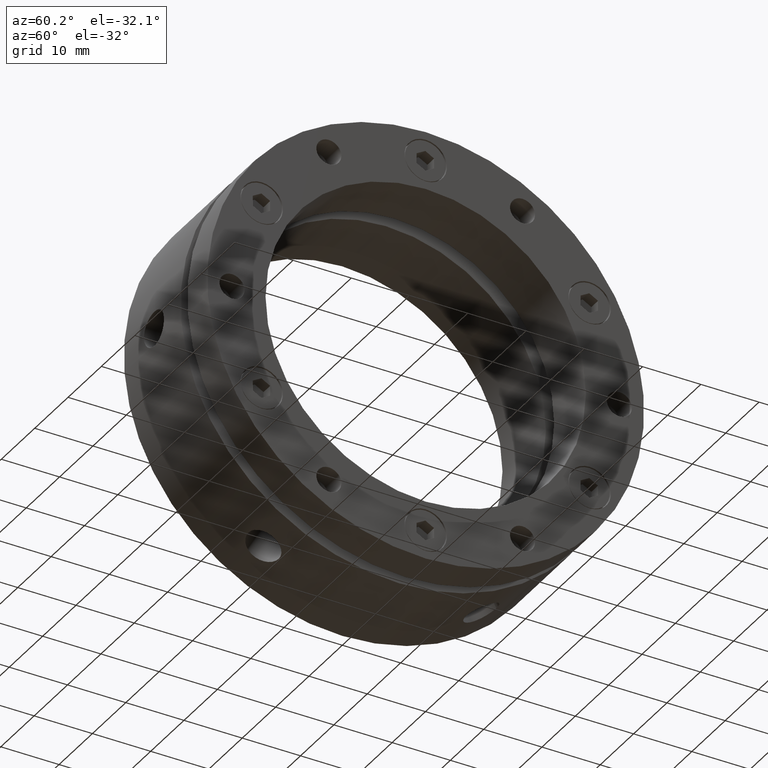
[diagram: clean part render]
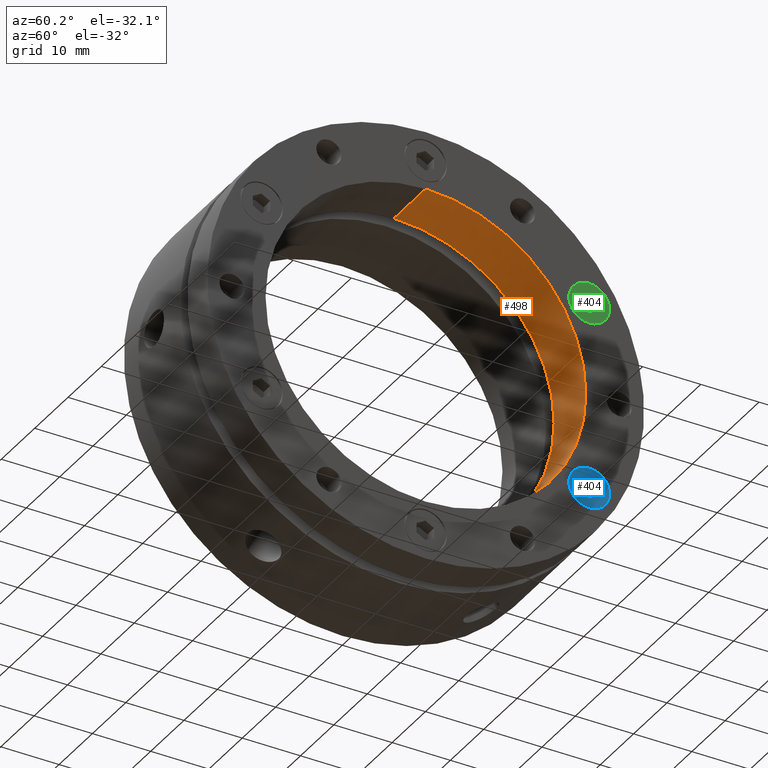
[diagram: same view with three faces highlighted in distinct colors, each labeled with its STEP entity id]
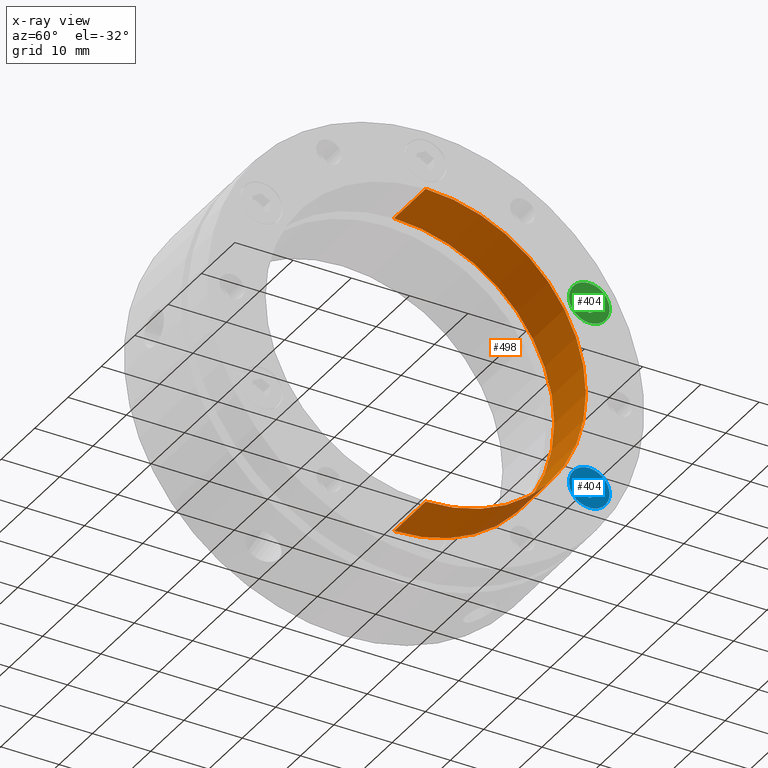
[diagram: x-ray of the same camera — body ghosted, the three highlighted faces saturated]
A machine part, auxiliary view with three faces highlighted in distinct colors.
The next image is the same camera in x-ray (body ghosted, the three faces saturated) — at least one of them is partly hidden behind the body in this view.
Their STEP definitions:

[orange] entity #498 — the highlighted cylindrical surface (partial cylindrical patch) has radius 27.5 mm, axis along (1, 0, 0).
#498 = ADVANCED_FACE ( 'NONE', ( #3515 ), #3524, .F. ) ;
#813 = ORIENTED_EDGE ( 'NONE', *, *, #3856, .F. ) ;
#814 = ORIENTED_EDGE ( 'NONE', *, *, #3980, .T. ) ;
#815 = ORIENTED_EDGE ( 'NONE', *, *, #3869, .T. ) ;
#816 = ORIENTED_EDGE ( 'NONE', *, *, #3982, .F. ) ;
#954 = VERTEX_POINT ( 'NONE', #1866 ) ;
#955 = VERTEX_POINT ( 'NONE', #1867 ) ;
#959 = VERTEX_POINT ( 'NONE', #1871 ) ;
#960 = VERTEX_POINT ( 'NONE', #1872 ) ;
#1208 = AXIS2_PLACEMENT_3D ( 'NONE', #2218, #2220, #2222 ) ;
#1221 = AXIS2_PLACEMENT_3D ( 'NONE', #2301, #2303, #2304 ) ;
#1866 = CARTESIAN_POINT ( 'NONE',  ( 24.99999999999999300, 3.367778697655221300E-015, 27.50000000000000000 ) ) ;
#1867 = CARTESIAN_POINT ( 'NONE',  ( 24.99999999999999300, 0.0000000000000000000, -27.50000000000000000 ) ) ;
#1871 = CARTESIAN_POINT ( 'NONE',  ( 15.50000000000000500, 3.367778697655221300E-015, 27.50000000000000000 ) ) ;
#1872 = CARTESIAN_POINT ( 'NONE',  ( 15.50000000000000500, 0.0000000000000000000, -27.50000000000000000 ) ) ;
#2218 = CARTESIAN_POINT ( 'NONE',  ( 24.99999999999999300, 0.0000000000000000000, 0.0000000000000000000 ) ) ;
#2220 = DIRECTION ( 'NONE',  ( -1.000000000000000000, -0.0000000000000000000, -0.0000000000000000000 ) ) ;
#2222 = DIRECTION ( 'NONE',  ( 0.0000000000000000000, 0.0000000000000000000, -1.000000000000000000 ) ) ;
#2301 = CARTESIAN_POINT ( 'NONE',  ( 15.50000000000000500, 0.0000000000000000000, 0.0000000000000000000 ) ) ;
#2303 = DIRECTION ( 'NONE',  ( -1.000000000000000000, -0.0000000000000000000, -0.0000000000000000000 ) ) ;
#2304 = DIRECTION ( 'NONE',  ( 0.0000000000000000000, 0.0000000000000000000, -1.000000000000000000 ) ) ;
#2373 = DIRECTION ( 'NONE',  ( 1.000000000000000000, 0.0000000000000000000, 0.0000000000000000000 ) ) ;
#2382 = CARTESIAN_POINT ( 'NONE',  ( 12.49999999999999300, 0.0000000000000000000, -27.50000000000000000 ) ) ;
#2385 = CARTESIAN_POINT ( 'NONE',  ( 12.49999999999999300, 3.367778697655221300E-015, 27.50000000000000000 ) ) ;
#2386 = DIRECTION ( 'NONE',  ( 1.000000000000000000, 0.0000000000000000000, 0.0000000000000000000 ) ) ;
#2620 = CIRCLE ( 'NONE', #1208, 27.50000000000000000 ) ;
#2637 = CIRCLE ( 'NONE', #1221, 27.50000000000000000 ) ;
#2652 = LINE ( 'NONE', #2382, #2654 ) ;
#2654 = VECTOR ( 'NONE', #2373, 1000.000000000000000 ) ;
#2655 = LINE ( 'NONE', #2385, #2657 ) ;
#2657 = VECTOR ( 'NONE', #2386, 1000.000000000000000 ) ;
#3212 = AXIS2_PLACEMENT_3D ( 'NONE', #4454, #4452, #4450 ) ;
#3515 = FACE_OUTER_BOUND ( 'NONE', #3888, .T. ) ;
#3524 = CYLINDRICAL_SURFACE ( 'NONE', #3212, 27.50000000000000000 ) ;
#3856 = EDGE_CURVE ( 'NONE', #954, #955, #2620, .T. ) ;
#3869 = EDGE_CURVE ( 'NONE', #959, #960, #2637, .T. ) ;
#3888 = EDGE_LOOP ( 'NONE', ( #816, #815, #814, #813 ) ) ;
#3980 = EDGE_CURVE ( 'NONE', #960, #955, #2652, .T. ) ;
#3982 = EDGE_CURVE ( 'NONE', #959, #954, #2655, .T. ) ;
#4450 = DIRECTION ( 'NONE',  ( 0.0000000000000000000, 0.0000000000000000000, -1.000000000000000000 ) ) ;
#4452 = DIRECTION ( 'NONE',  ( 1.000000000000000000, 0.0000000000000000000, 0.0000000000000000000 ) ) ;
#4454 = CARTESIAN_POINT ( 'NONE',  ( 12.49999999999999300, 0.0000000000000000000, 0.0000000000000000000 ) ) ;

[blue] entity #404 — the highlighted planar face has unit normal (1, 0, 0).
#69 = ORIENTED_EDGE ( 'NONE', *, *, #631, .F. ) ;
#135 = ORIENTED_EDGE ( 'NONE', *, *, #630, .F. ) ;
#148 = ORIENTED_EDGE ( 'NONE', *, *, #602, .T. ) ;
#153 = ORIENTED_EDGE ( 'NONE', *, *, #600, .F. ) ;
#182 = ORIENTED_EDGE ( 'NONE', *, *, #603, .F. ) ;
#189 = ORIENTED_EDGE ( 'NONE', *, *, #4701, .F. ) ;
#258 = ORIENTED_EDGE ( 'NONE', *, *, #628, .F. ) ;
#269 = ORIENTED_EDGE ( 'NONE', *, *, #629, .T. ) ;
#331 = EDGE_LOOP ( 'NONE', ( #258, #135, #69, #182, #153, #189 ) ) ;
#360 = EDGE_LOOP ( 'NONE', ( #269, #148 ) ) ;
#384 = VERTEX_POINT ( 'NONE', #4121 ) ;
#386 = VERTEX_POINT ( 'NONE', #4123 ) ;
#404 = ADVANCED_FACE ( 'NONE', ( #3301, #3304 ), #4156, .T. ) ;
#534 = AXIS2_PLACEMENT_3D ( 'NONE', #4152, #4161, #4162 ) ;
#600 = EDGE_CURVE ( 'NONE', #2254, #2246, #3617, .T. ) ;
#602 = EDGE_CURVE ( 'NONE', #386, #2266, #3621, .T. ) ;
#603 = EDGE_CURVE ( 'NONE', #2246, #2244, #3623, .T. ) ;
#628 = EDGE_CURVE ( 'NONE', #384, #2255, #3654, .T. ) ;
#629 = EDGE_CURVE ( 'NONE', #2266, #386, #3651, .T. ) ;
#630 = EDGE_CURVE ( 'NONE', #2248, #384, #3658, .T. ) ;
#631 = EDGE_CURVE ( 'NONE', #2244, #2248, #3656, .T. ) ;
#1635 = DIRECTION ( 'NONE',  ( -1.251928832280965900E-016, 0.0000000000000000000, -1.000000000000000000 ) ) ;
#1639 = CARTESIAN_POINT ( 'NONE',  ( 1.499999999999999800, 4.000000000000000000, -0.8660254037844389300 ) ) ;
#1640 = CARTESIAN_POINT ( 'NONE',  ( 1.500000000000000000, 4.000000000000000000, 0.8660254037844387100 ) ) ;
#1641 = DIRECTION ( 'NONE',  ( -0.8660254037844387100, 0.0000000000000000000, -0.4999999999999998300 ) ) ;
#1643 = CARTESIAN_POINT ( 'NONE',  ( 4.046263255784118500E-016, 4.000000000000000000, 1.732050807568877400 ) ) ;
#1644 = CARTESIAN_POINT ( 'NONE',  ( 0.0000000000000000000, 4.000000000000000000, 0.0000000000000000000 ) ) ;
#1645 = DIRECTION ( 'NONE',  ( 0.0000000000000000000, 1.000000000000000000, 0.0000000000000000000 ) ) ;
#1646 = DIRECTION ( 'NONE',  ( 0.0000000000000000000, 0.0000000000000000000, 1.000000000000000000 ) ) ;
#1648 = DIRECTION ( 'NONE',  ( 0.8660254037844386000, 0.0000000000000000000, -0.5000000000000001100 ) ) ;
#2115 = CARTESIAN_POINT ( 'NONE',  ( -1.499999999999999800, 4.000000000000000000, -0.8660254037844386000 ) ) ;
#2118 = CARTESIAN_POINT ( 'NONE',  ( 4.046263255784118500E-016, 4.000000000000000000, 1.732050807568877400 ) ) ;
#2119 = CARTESIAN_POINT ( 'NONE',  ( -1.499999999999999100, 4.000000000000000000, 0.8660254037844393700 ) ) ;
#2120 = CARTESIAN_POINT ( 'NONE',  ( 1.500000000000000000, 4.000000000000000000, 0.8660254037844387100 ) ) ;
#2123 = CARTESIAN_POINT ( 'NONE',  ( -1.084202172485504400E-016, 4.000000000000000000, -1.732050807568877200 ) ) ;
#2128 = CARTESIAN_POINT ( 'NONE',  ( 0.0000000000000000000, 4.000000000000000000, -3.500000000000000000 ) ) ;
#2244 = VERTEX_POINT ( 'NONE', #2118 ) ;
#2246 = VERTEX_POINT ( 'NONE', #2119 ) ;
#2248 = VERTEX_POINT ( 'NONE', #2120 ) ;
#2254 = VERTEX_POINT ( 'NONE', #2115 ) ;
#2255 = VERTEX_POINT ( 'NONE', #2123 ) ;
#2266 = VERTEX_POINT ( 'NONE', #2128 ) ;
#2582 = CARTESIAN_POINT ( 'NONE',  ( -1.767567020076689400E-016, 4.000000000000000000, -1.732050807568877200 ) ) ;
#2747 = LINE ( 'NONE', #2582, #2749 ) ;
#2749 = VECTOR ( 'NONE', #2853, 1000.000000000000000 ) ;
#2853 = DIRECTION ( 'NONE',  ( -0.8660254037844386000, 0.0000000000000000000, 0.5000000000000001100 ) ) ;
#3301 = FACE_BOUND ( 'NONE', #331, .T. ) ;
#3304 = FACE_OUTER_BOUND ( 'NONE', #360, .T. ) ;
#3617 = LINE ( 'NONE', #4590, #3622 ) ;
#3621 = CIRCLE ( 'NONE', #3931, 3.500000000000000000 ) ;
#3622 = VECTOR ( 'NONE', #4594, 1000.000000000000000 ) ;
#3623 = LINE ( 'NONE', #4598, #3627 ) ;
#3627 = VECTOR ( 'NONE', #4596, 1000.000000000000100 ) ;
#3651 = CIRCLE ( 'NONE', #3936, 3.500000000000000000 ) ;
#3654 = LINE ( 'NONE', #1639, #3657 ) ;
#3656 = LINE ( 'NONE', #1643, #3662 ) ;
#3657 = VECTOR ( 'NONE', #1641, 1000.000000000000000 ) ;
#3658 = LINE ( 'NONE', #1640, #3660 ) ;
#3660 = VECTOR ( 'NONE', #1635, 1000.000000000000000 ) ;
#3662 = VECTOR ( 'NONE', #1648, 1000.000000000000000 ) ;
#3931 = AXIS2_PLACEMENT_3D ( 'NONE', #4599, #4600, #4601 ) ;
#3936 = AXIS2_PLACEMENT_3D ( 'NONE', #1644, #1645, #1646 ) ;
#4121 = CARTESIAN_POINT ( 'NONE',  ( 1.499999999999999800, 4.000000000000000000, -0.8660254037844389300 ) ) ;
#4123 = CARTESIAN_POINT ( 'NONE',  ( 4.286263797015736600E-016, 4.000000000000000000, 3.500000000000000000 ) ) ;
#4152 = CARTESIAN_POINT ( 'NONE',  ( 0.0000000000000000000, 4.000000000000000000, 0.0000000000000000000 ) ) ;
#4156 = PLANE ( 'NONE',  #534 ) ;
#4161 = DIRECTION ( 'NONE',  ( 0.0000000000000000000, 1.000000000000000000, 0.0000000000000000000 ) ) ;
#4162 = DIRECTION ( 'NONE',  ( 0.0000000000000000000, -0.0000000000000000000, 1.000000000000000000 ) ) ;
#4590 = CARTESIAN_POINT ( 'NONE',  ( -1.499999999999999800, 4.000000000000000000, -0.8660254037844386000 ) ) ;
#4594 = DIRECTION ( 'NONE',  ( 3.755786496842897100E-016, 0.0000000000000000000, 1.000000000000000000 ) ) ;
#4596 = DIRECTION ( 'NONE',  ( 0.8660254037844387100, 0.0000000000000000000, 0.4999999999999998300 ) ) ;
#4598 = CARTESIAN_POINT ( 'NONE',  ( -1.499999999999999100, 4.000000000000000000, 0.8660254037844393700 ) ) ;
#4599 = CARTESIAN_POINT ( 'NONE',  ( 0.0000000000000000000, 4.000000000000000000, 0.0000000000000000000 ) ) ;
#4600 = DIRECTION ( 'NONE',  ( 0.0000000000000000000, 1.000000000000000000, 0.0000000000000000000 ) ) ;
#4601 = DIRECTION ( 'NONE',  ( 0.0000000000000000000, 0.0000000000000000000, 1.000000000000000000 ) ) ;
#4701 = EDGE_CURVE ( 'NONE', #2255, #2254, #2747, .T. ) ;

[green] entity #404 — the highlighted planar face has unit normal (1, 0, 0).
#69 = ORIENTED_EDGE ( 'NONE', *, *, #631, .F. ) ;
#135 = ORIENTED_EDGE ( 'NONE', *, *, #630, .F. ) ;
#148 = ORIENTED_EDGE ( 'NONE', *, *, #602, .T. ) ;
#153 = ORIENTED_EDGE ( 'NONE', *, *, #600, .F. ) ;
#182 = ORIENTED_EDGE ( 'NONE', *, *, #603, .F. ) ;
#189 = ORIENTED_EDGE ( 'NONE', *, *, #4701, .F. ) ;
#258 = ORIENTED_EDGE ( 'NONE', *, *, #628, .F. ) ;
#269 = ORIENTED_EDGE ( 'NONE', *, *, #629, .T. ) ;
#331 = EDGE_LOOP ( 'NONE', ( #258, #135, #69, #182, #153, #189 ) ) ;
#360 = EDGE_LOOP ( 'NONE', ( #269, #148 ) ) ;
#384 = VERTEX_POINT ( 'NONE', #4121 ) ;
#386 = VERTEX_POINT ( 'NONE', #4123 ) ;
#404 = ADVANCED_FACE ( 'NONE', ( #3301, #3304 ), #4156, .T. ) ;
#534 = AXIS2_PLACEMENT_3D ( 'NONE', #4152, #4161, #4162 ) ;
#600 = EDGE_CURVE ( 'NONE', #2254, #2246, #3617, .T. ) ;
#602 = EDGE_CURVE ( 'NONE', #386, #2266, #3621, .T. ) ;
#603 = EDGE_CURVE ( 'NONE', #2246, #2244, #3623, .T. ) ;
#628 = EDGE_CURVE ( 'NONE', #384, #2255, #3654, .T. ) ;
#629 = EDGE_CURVE ( 'NONE', #2266, #386, #3651, .T. ) ;
#630 = EDGE_CURVE ( 'NONE', #2248, #384, #3658, .T. ) ;
#631 = EDGE_CURVE ( 'NONE', #2244, #2248, #3656, .T. ) ;
#1635 = DIRECTION ( 'NONE',  ( -1.251928832280965900E-016, 0.0000000000000000000, -1.000000000000000000 ) ) ;
#1639 = CARTESIAN_POINT ( 'NONE',  ( 1.499999999999999800, 4.000000000000000000, -0.8660254037844389300 ) ) ;
#1640 = CARTESIAN_POINT ( 'NONE',  ( 1.500000000000000000, 4.000000000000000000, 0.8660254037844387100 ) ) ;
#1641 = DIRECTION ( 'NONE',  ( -0.8660254037844387100, 0.0000000000000000000, -0.4999999999999998300 ) ) ;
#1643 = CARTESIAN_POINT ( 'NONE',  ( 4.046263255784118500E-016, 4.000000000000000000, 1.732050807568877400 ) ) ;
#1644 = CARTESIAN_POINT ( 'NONE',  ( 0.0000000000000000000, 4.000000000000000000, 0.0000000000000000000 ) ) ;
#1645 = DIRECTION ( 'NONE',  ( 0.0000000000000000000, 1.000000000000000000, 0.0000000000000000000 ) ) ;
#1646 = DIRECTION ( 'NONE',  ( 0.0000000000000000000, 0.0000000000000000000, 1.000000000000000000 ) ) ;
#1648 = DIRECTION ( 'NONE',  ( 0.8660254037844386000, 0.0000000000000000000, -0.5000000000000001100 ) ) ;
#2115 = CARTESIAN_POINT ( 'NONE',  ( -1.499999999999999800, 4.000000000000000000, -0.8660254037844386000 ) ) ;
#2118 = CARTESIAN_POINT ( 'NONE',  ( 4.046263255784118500E-016, 4.000000000000000000, 1.732050807568877400 ) ) ;
#2119 = CARTESIAN_POINT ( 'NONE',  ( -1.499999999999999100, 4.000000000000000000, 0.8660254037844393700 ) ) ;
#2120 = CARTESIAN_POINT ( 'NONE',  ( 1.500000000000000000, 4.000000000000000000, 0.8660254037844387100 ) ) ;
#2123 = CARTESIAN_POINT ( 'NONE',  ( -1.084202172485504400E-016, 4.000000000000000000, -1.732050807568877200 ) ) ;
#2128 = CARTESIAN_POINT ( 'NONE',  ( 0.0000000000000000000, 4.000000000000000000, -3.500000000000000000 ) ) ;
#2244 = VERTEX_POINT ( 'NONE', #2118 ) ;
#2246 = VERTEX_POINT ( 'NONE', #2119 ) ;
#2248 = VERTEX_POINT ( 'NONE', #2120 ) ;
#2254 = VERTEX_POINT ( 'NONE', #2115 ) ;
#2255 = VERTEX_POINT ( 'NONE', #2123 ) ;
#2266 = VERTEX_POINT ( 'NONE', #2128 ) ;
#2582 = CARTESIAN_POINT ( 'NONE',  ( -1.767567020076689400E-016, 4.000000000000000000, -1.732050807568877200 ) ) ;
#2747 = LINE ( 'NONE', #2582, #2749 ) ;
#2749 = VECTOR ( 'NONE', #2853, 1000.000000000000000 ) ;
#2853 = DIRECTION ( 'NONE',  ( -0.8660254037844386000, 0.0000000000000000000, 0.5000000000000001100 ) ) ;
#3301 = FACE_BOUND ( 'NONE', #331, .T. ) ;
#3304 = FACE_OUTER_BOUND ( 'NONE', #360, .T. ) ;
#3617 = LINE ( 'NONE', #4590, #3622 ) ;
#3621 = CIRCLE ( 'NONE', #3931, 3.500000000000000000 ) ;
#3622 = VECTOR ( 'NONE', #4594, 1000.000000000000000 ) ;
#3623 = LINE ( 'NONE', #4598, #3627 ) ;
#3627 = VECTOR ( 'NONE', #4596, 1000.000000000000100 ) ;
#3651 = CIRCLE ( 'NONE', #3936, 3.500000000000000000 ) ;
#3654 = LINE ( 'NONE', #1639, #3657 ) ;
#3656 = LINE ( 'NONE', #1643, #3662 ) ;
#3657 = VECTOR ( 'NONE', #1641, 1000.000000000000000 ) ;
#3658 = LINE ( 'NONE', #1640, #3660 ) ;
#3660 = VECTOR ( 'NONE', #1635, 1000.000000000000000 ) ;
#3662 = VECTOR ( 'NONE', #1648, 1000.000000000000000 ) ;
#3931 = AXIS2_PLACEMENT_3D ( 'NONE', #4599, #4600, #4601 ) ;
#3936 = AXIS2_PLACEMENT_3D ( 'NONE', #1644, #1645, #1646 ) ;
#4121 = CARTESIAN_POINT ( 'NONE',  ( 1.499999999999999800, 4.000000000000000000, -0.8660254037844389300 ) ) ;
#4123 = CARTESIAN_POINT ( 'NONE',  ( 4.286263797015736600E-016, 4.000000000000000000, 3.500000000000000000 ) ) ;
#4152 = CARTESIAN_POINT ( 'NONE',  ( 0.0000000000000000000, 4.000000000000000000, 0.0000000000000000000 ) ) ;
#4156 = PLANE ( 'NONE',  #534 ) ;
#4161 = DIRECTION ( 'NONE',  ( 0.0000000000000000000, 1.000000000000000000, 0.0000000000000000000 ) ) ;
#4162 = DIRECTION ( 'NONE',  ( 0.0000000000000000000, -0.0000000000000000000, 1.000000000000000000 ) ) ;
#4590 = CARTESIAN_POINT ( 'NONE',  ( -1.499999999999999800, 4.000000000000000000, -0.8660254037844386000 ) ) ;
#4594 = DIRECTION ( 'NONE',  ( 3.755786496842897100E-016, 0.0000000000000000000, 1.000000000000000000 ) ) ;
#4596 = DIRECTION ( 'NONE',  ( 0.8660254037844387100, 0.0000000000000000000, 0.4999999999999998300 ) ) ;
#4598 = CARTESIAN_POINT ( 'NONE',  ( -1.499999999999999100, 4.000000000000000000, 0.8660254037844393700 ) ) ;
#4599 = CARTESIAN_POINT ( 'NONE',  ( 0.0000000000000000000, 4.000000000000000000, 0.0000000000000000000 ) ) ;
#4600 = DIRECTION ( 'NONE',  ( 0.0000000000000000000, 1.000000000000000000, 0.0000000000000000000 ) ) ;
#4601 = DIRECTION ( 'NONE',  ( 0.0000000000000000000, 0.0000000000000000000, 1.000000000000000000 ) ) ;
#4701 = EDGE_CURVE ( 'NONE', #2255, #2254, #2747, .T. ) ;